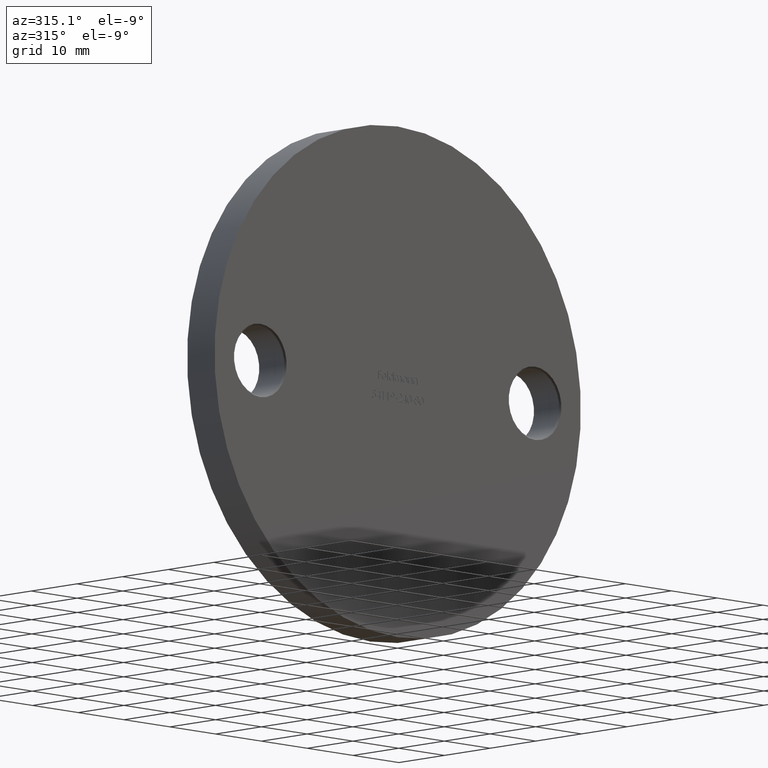
[diagram: clean part render]
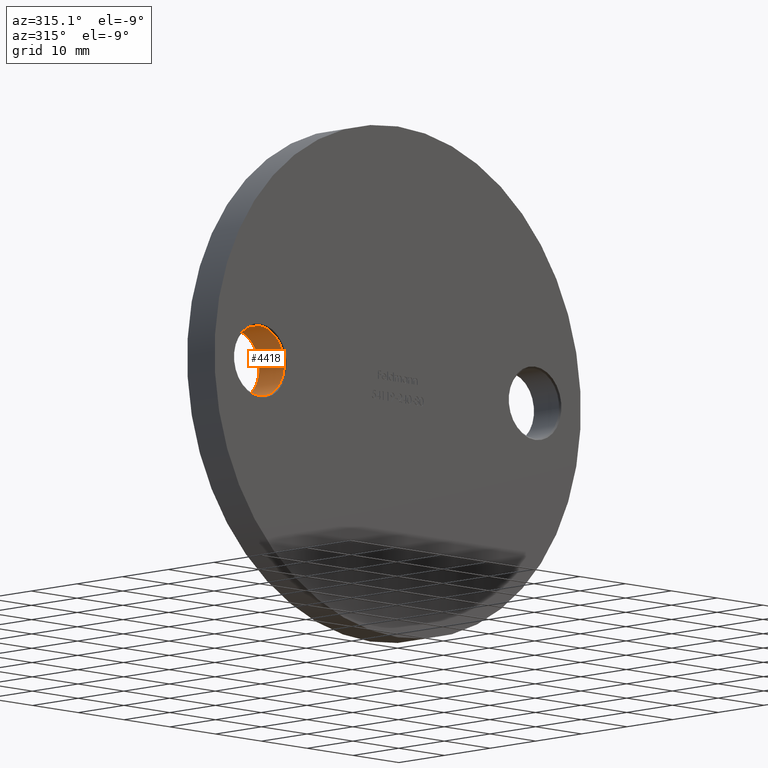
[diagram: same view with one face highlighted and labeled with its STEP entity id]
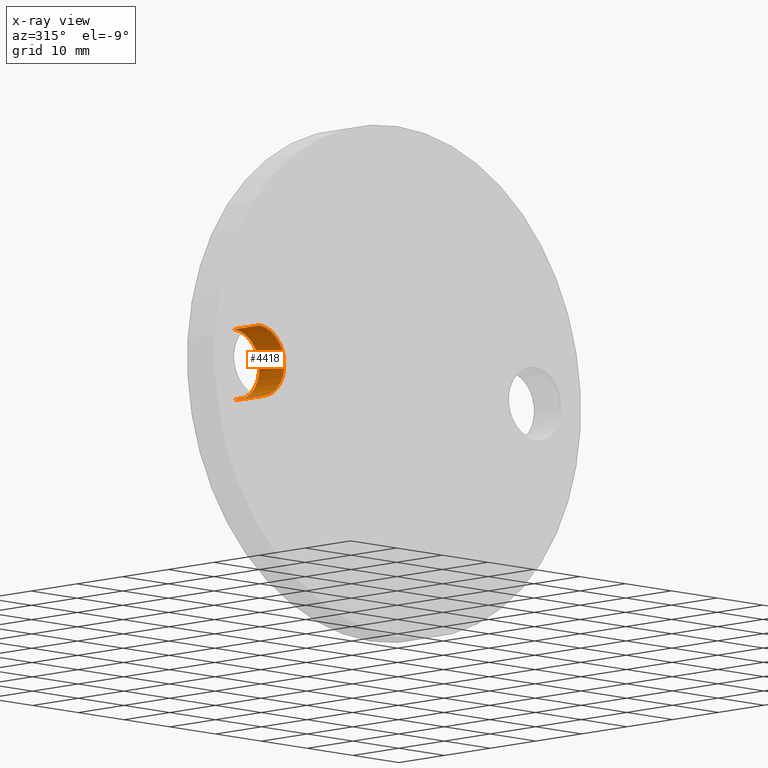
[diagram: x-ray of the same camera — body ghosted, the highlighted face saturated]
A machine part, auxiliary view. The second image highlights one B-rep face of the part: STEP entity #4418.
The next image is the same camera in x-ray: the body ghosted, the highlighted face saturated — about 0% of this face is hidden behind the body in this view.
In plain terms, the highlighted cylindrical surface (edge-blend (fillet) strip) has radius 5.5 mm, axis along (-0, -1, -0).
Its self-contained STEP definition (entity closure, byte-faithful):
#74 = DIRECTION ( 'NONE',  ( -0.000000000000000000, -1.000000000000000000, -0.000000000000000000 ) ) ;
#281 = DIRECTION ( 'NONE',  ( 0.000000000000000000, 0.000000000000000000, 1.000000000000000000 ) ) ;
#313 = VERTEX_POINT ( 'NONE', #12658 ) ;
#598 = AXIS2_PLACEMENT_3D ( 'NONE', #10902, #14155, #10994 ) ;
#976 = CARTESIAN_POINT ( 'NONE',  ( -30.00000000000000000, 5.750000000000000000, 0.000000000000000000 ) ) ;
#1081 = ORIENTED_EDGE ( 'NONE', *, *, #9944, .T. ) ;
#1096 = EDGE_CURVE ( 'NONE', #313, #9378, #10554, .T. ) ;
#1172 = DIRECTION ( 'NONE',  ( 0.000000000000000000, 1.000000000000000000, 0.000000000000000000 ) ) ;
#1312 = EDGE_LOOP ( 'NONE', ( #9389, #5588, #1081, #6060 ) ) ;
#1356 = CARTESIAN_POINT ( 'NONE',  ( -30.00000000000000000, 0.2500000000000036637, 0.000000000000000000 ) ) ;
#1617 = AXIS2_PLACEMENT_3D ( 'NONE', #976, #1172, #281 ) ;
#3308 = DIRECTION ( 'NONE',  ( -0.000000000000000000, -1.000000000000000000, -0.000000000000000000 ) ) ;
#3511 = DIRECTION ( 'NONE',  ( -0.000000000000000000, -1.000000000000000000, -0.000000000000000000 ) ) ;
#4364 = VECTOR ( 'NONE', #74, 1000.000000000000000 ) ;
#4418 = ADVANCED_FACE ( 'NONE', ( #9745 ), #11641, .F. ) ;
#4428 = CARTESIAN_POINT ( 'NONE',  ( -30.00000000000000000, 5.750000000000000000, -5.499999999999996447 ) ) ;
#4541 = CARTESIAN_POINT ( 'NONE',  ( -30.00000000000000000, 5.750000000000000000, 5.499999999999996447 ) ) ;
#5533 = CARTESIAN_POINT ( 'NONE',  ( -30.00000000000000000, 6.000000000000000000, -5.499999999999996447 ) ) ;
#5588 = ORIENTED_EDGE ( 'NONE', *, *, #7212, .T. ) ;
#5706 = VECTOR ( 'NONE', #3308, 1000.000000000000000 ) ;
#6060 = ORIENTED_EDGE ( 'NONE', *, *, #1096, .T. ) ;
#6528 = CARTESIAN_POINT ( 'NONE',  ( -30.00000000000000000, 6.000000000000000000, 5.499999999999996447 ) ) ;
#7212 = EDGE_CURVE ( 'NONE', #13335, #13715, #9879, .T. ) ;
#9023 = DIRECTION ( 'NONE',  ( 0.000000000000000000, 0.000000000000000000, 1.000000000000000000 ) ) ;
#9378 = VERTEX_POINT ( 'NONE', #11902 ) ;
#9389 = ORIENTED_EDGE ( 'NONE', *, *, #13113, .F. ) ;
#9745 = FACE_OUTER_BOUND ( 'NONE', #1312, .T. ) ;
#9835 = LINE ( 'NONE', #5533, #4364 ) ;
#9879 = CIRCLE ( 'NONE', #1617, 5.499999999999996447 ) ;
#9944 = EDGE_CURVE ( 'NONE', #13715, #313, #9835, .T. ) ;
#10554 = CIRCLE ( 'NONE', #13143, 5.499999999999996447 ) ;
#10902 = CARTESIAN_POINT ( 'NONE',  ( -30.00000000000000000, 6.000000000000000000, 0.000000000000000000 ) ) ;
#10994 = DIRECTION ( 'NONE',  ( 0.000000000000000000, 0.000000000000000000, -1.000000000000000000 ) ) ;
#11641 = CYLINDRICAL_SURFACE ( 'NONE', #598, 5.499999999999996447 ) ;
#11902 = CARTESIAN_POINT ( 'NONE',  ( -30.00000000000000000, 0.2500000000000036637, 5.499999999999996447 ) ) ;
#12658 = CARTESIAN_POINT ( 'NONE',  ( -30.00000000000000000, 0.2500000000000036637, -5.499999999999996447 ) ) ;
#13113 = EDGE_CURVE ( 'NONE', #13335, #9378, #13746, .T. ) ;
#13143 = AXIS2_PLACEMENT_3D ( 'NONE', #1356, #3511, #9023 ) ;
#13335 = VERTEX_POINT ( 'NONE', #4541 ) ;
#13715 = VERTEX_POINT ( 'NONE', #4428 ) ;
#13746 = LINE ( 'NONE', #6528, #5706 ) ;
#14155 = DIRECTION ( 'NONE',  ( -0.000000000000000000, -1.000000000000000000, -0.000000000000000000 ) ) ;